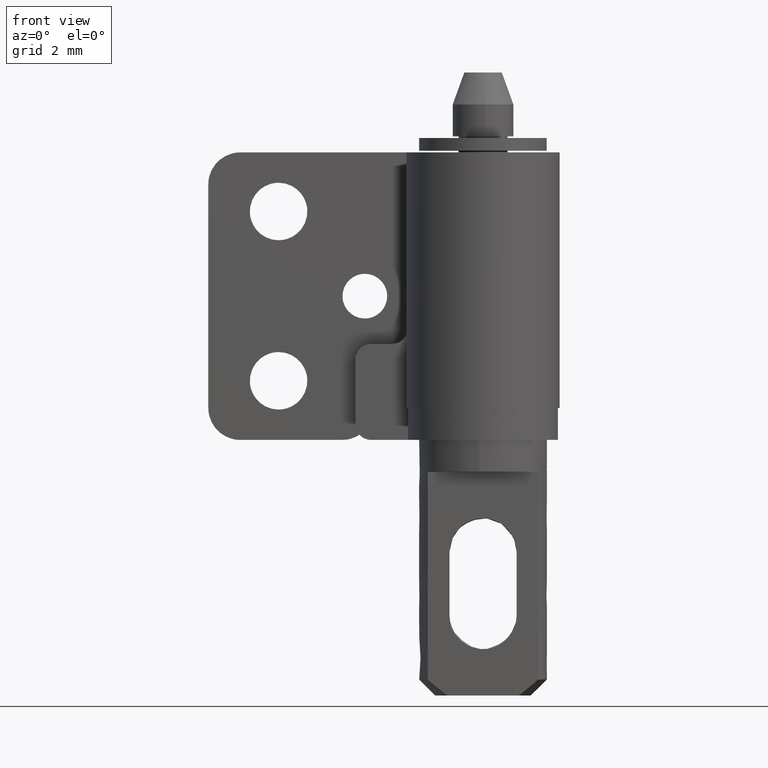
[diagram: clean part render]
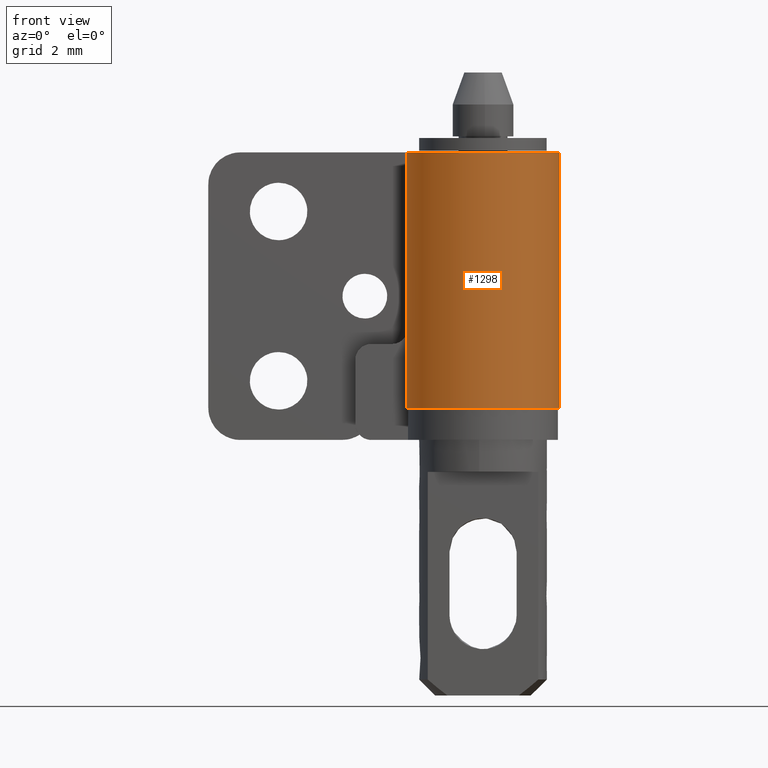
[diagram: same view with one face highlighted and labeled with its STEP entity id]
A machine part, front view. The second image highlights one B-rep face of the part: STEP entity #1298.
In plain terms, the highlighted face is a freeform B-spline surface patch.
Its self-contained STEP definition (entity closure, byte-faithful):
#558=CARTESIAN_POINT('',(-2.400000000000000,0.199999999999988,9.000000000000108));
#559=VERTEX_POINT('',#558);
#565=CARTESIAN_POINT('',(-2.400000000000035,0.199999999999988,17.0));
#566=VERTEX_POINT('',#565);
#567=CARTESIAN_POINT('',(-2.400000000000000,0.199999999999988,9.000000000000108));
#568=CARTESIAN_POINT('',(-2.400000000000035,0.199999999999988,17.0));
#569=QUASI_UNIFORM_CURVE('',1,(#567,#568),.UNSPECIFIED.,.F.,.U.);
#570=EDGE_CURVE('',#559,#566,#569,.T.);
#1128=CARTESIAN_POINT('',(0.0,2.600000000000045,9.0));
#1129=VERTEX_POINT('',#1128);
#1135=CARTESIAN_POINT('',(0.0,2.600000000000045,9.0));
#1136=CARTESIAN_POINT('',(0.117807704548001,2.600000938103884,9.000000000000005));
#1137=CARTESIAN_POINT('',(0.412336843036750,2.578297301376353,8.999999999999991));
#1138=CARTESIAN_POINT('',(0.834980960260857,2.466911120541015,9.000000000000030));
#1139=CARTESIAN_POINT('',(1.213301925994789,2.281507110138393,8.999999999999975));
#1140=CARTESIAN_POINT('',(1.516222946302001,2.070932811998147,8.999999999999970));
#1141=CARTESIAN_POINT('',(1.797217732167637,1.809125938897819,9.000000000000027));
#1142=CARTESIAN_POINT('',(2.033175386677562,1.496007272475662,8.999999999999989));
#1143=CARTESIAN_POINT('',(2.196802856793148,1.181781654782506,8.999999999999922));
#1144=CARTESIAN_POINT('',(2.299574923223785,0.905288362904476,9.000000000000224));
#1145=CARTESIAN_POINT('',(2.382279787765062,0.568612177828238,8.999999999999833));
#1146=CARTESIAN_POINT('',(2.411183427686613,0.207131128703586,9.000000000000007));
#1147=CARTESIAN_POINT('',(2.380769449414349,-0.145722067702748,9.000000000000242));
#1148=CARTESIAN_POINT('',(2.323576926300933,-0.420048751756929,8.999999999999908));
#1149=CARTESIAN_POINT('',(2.231909695528349,-0.700418541002367,8.999999999999959));
#1150=CARTESIAN_POINT('',(2.076246573472896,-1.026993938030161,9.000000000000542));
#1151=CARTESIAN_POINT('',(1.862798611649264,-1.329065348147361,8.999999999998572));
#1152=CARTESIAN_POINT('',(1.585055447991110,-1.614587060981526,9.000000000000716));
#1153=CARTESIAN_POINT('',(1.290136033948403,-1.837552696339725,8.999999999999757));
#1154=CARTESIAN_POINT('',(0.909591241818198,-2.034250261796553,9.000000000000034));
#1155=CARTESIAN_POINT('',(0.514103925144783,-2.157550267993957,9.000000000000055));
#1156=CARTESIAN_POINT('',(0.132796692263792,-2.204559895586096,8.999999999999881));
#1157=CARTESIAN_POINT('',(-0.184315590606998,-2.198227796206444,9.000000000000110));
#1158=CARTESIAN_POINT('',(-0.520449272405428,-2.152592282708989,9.000000000000195));
#1159=CARTESIAN_POINT('',(-0.924889162978570,-2.033309189380690,8.999999999999748));
#1160=CARTESIAN_POINT('',(-1.329295208019059,-1.815553629318419,9.000000000000116));
#1161=CARTESIAN_POINT('',(-1.627274563759044,-1.573249576500139,8.999999999999979));
#1162=CARTESIAN_POINT('',(-1.860752152671142,-1.327273461833276,9.000000000000004));
#1163=CARTESIAN_POINT('',(-2.033876322762714,-1.087755994985765,8.999999999999996));
#1164=CARTESIAN_POINT('',(-2.190715130986857,-0.795402067191368,9.0));
#1165=CARTESIAN_POINT('',(-2.291686969908287,-0.533642955002197,8.999999999999996));
#1166=CARTESIAN_POINT('',(-2.377146055115401,-0.190233975030050,9.000000000000036));
#1167=CARTESIAN_POINT('',(-2.400019444236524,0.045375886349818,8.999999999999933));
#1168=CARTESIAN_POINT('',(-2.400000000000000,0.199999999999988,9.000000000000108));
#1169=B_SPLINE_CURVE_WITH_KNOTS('',3,(#1135,#1136,#1137,#1138,#1139,#1140,#1141,#1142,#1143,#1144,#1145,#1146,#1147,#1148,#1149,#1150,#1151,#1152,#1153,#1154,#1155,#1156,#1157,#1158,#1159,#1160,#1161,#1162,#1163,#1164,#1165,#1166,#1167,#1168),.UNSPECIFIED.,.F.,.U.,(4,1,1,1,1,1,1,1,1,1,1,1,1,1,1,1,1,1,1,1,1,1,1,1,1,1,1,1,1,1,1,4),(0.000000027798633,0.353427150695305,0.883574573381939,1.303274426665954,1.612526542615305,1.988047584179197,2.451927184680304,2.783269720645752,3.048346604530911,3.335510734514617,3.821462803493664,4.130709566565032,4.395783029105128,4.660863817721719,5.014289419486254,5.478171272423724,5.765335255696649,6.207124499407086,6.582647657608725,7.046527721726020,7.444131104943908,7.731282195717392,7.996357283315280,8.460232945157303,8.990383070035559,9.365906425189836,9.608891297987407,10.006500242499300,10.249486957831181,10.602913951453090,10.845905412686450,11.309773471044119),.UNSPECIFIED.);
#1170=EDGE_CURVE('',#1129,#559,#1169,.T.);
#1187=CARTESIAN_POINT('',(4.408583E-016,2.600000000000000,17.0));
#1188=VERTEX_POINT('',#1187);
#1189=CARTESIAN_POINT('',(4.408583E-016,2.600000000000000,17.0));
#1190=CARTESIAN_POINT('',(0.191445759073999,2.600052283096230,16.999999999999950));
#1191=CARTESIAN_POINT('',(0.478579783128173,2.565446015609182,17.000000000000028));
#1192=CARTESIAN_POINT('',(0.852160998208939,2.450233667472978,17.0));
#1193=CARTESIAN_POINT('',(1.141420615708140,2.319887186043875,17.0));
#1194=CARTESIAN_POINT('',(1.460170425645326,2.119429829610161,16.999999999999979));
#1195=CARTESIAN_POINT('',(1.746377884081645,1.862410973482028,17.000000000000089));
#1196=CARTESIAN_POINT('',(1.962709634886039,1.591234362329801,16.999999999999929));
#1197=CARTESIAN_POINT('',(2.125555242854200,1.327863421156209,16.999999999999979));
#1198=CARTESIAN_POINT('',(2.239309491220284,1.079502850431175,17.000000000000259));
#1199=CARTESIAN_POINT('',(2.349460204788313,0.735530118225977,16.999999999999879));
#1200=CARTESIAN_POINT('',(2.405380799567322,0.384556472644012,16.999999999999758));
#1201=CARTESIAN_POINT('',(2.397775287055093,-0.065608851384428,17.000000000000629));
#1202=CARTESIAN_POINT('',(2.327228233108229,-0.429030367125183,16.999999999999702));
#1203=CARTESIAN_POINT('',(2.181981143313253,-0.823488119256783,17.000000000000160));
#1204=CARTESIAN_POINT('',(2.015998169312472,-1.120720715517506,16.999999999999890));
#1205=CARTESIAN_POINT('',(1.765481194895498,-1.439705718035531,17.000000000000210));
#1206=CARTESIAN_POINT('',(1.517238521743087,-1.672449042609125,17.000000000000199));
#1207=CARTESIAN_POINT('',(1.206047760299854,-1.883837203127934,17.000000000000089));
#1208=CARTESIAN_POINT('',(0.908043552589010,-2.030985757949626,16.999999999999929));
#1209=CARTESIAN_POINT('',(0.528656096422706,-2.153110922996860,17.000000000000028));
#1210=CARTESIAN_POINT('',(0.162300168226027,-2.205165463369965,16.999999999999961));
#1211=CARTESIAN_POINT('',(-0.206440028501647,-2.197787102088229,17.000000000000028));
#1212=CARTESIAN_POINT('',(-0.556798418931694,-2.145284780919841,17.000000000000838));
#1213=CARTESIAN_POINT('',(-0.908908700549255,-2.032548382550074,16.999999999999730));
#1214=CARTESIAN_POINT('',(-1.218036054619669,-1.875143335730172,17.000000000000039));
#1215=CARTESIAN_POINT('',(-1.486717096018603,-1.693227508666245,17.000000000000011));
#1216=CARTESIAN_POINT('',(-1.751218338033658,-1.457179467090223,16.999999999999979));
#1217=CARTESIAN_POINT('',(-2.010356721034000,-1.134420611897507,17.000000000000021));
#1218=CARTESIAN_POINT('',(-2.211315994394226,-0.763934210505071,17.0));
#1219=CARTESIAN_POINT('',(-2.361014797856595,-0.315396216716793,17.0));
#1220=CARTESIAN_POINT('',(-2.400048883569449,0.008554808075371,17.000000000000011));
#1221=CARTESIAN_POINT('',(-2.400000000000035,0.199999999999988,17.0));
#1222=B_SPLINE_CURVE_WITH_KNOTS('',3,(#1189,#1190,#1191,#1192,#1193,#1194,#1195,#1196,#1197,#1198,#1199,#1200,#1201,#1202,#1203,#1204,#1205,#1206,#1207,#1208,#1209,#1210,#1211,#1212,#1213,#1214,#1215,#1216,#1217,#1218,#1219,#1220,#1221),.UNSPECIFIED.,.F.,.U.,(4,1,1,1,1,1,1,1,1,1,1,1,1,1,1,1,1,1,1,1,1,1,1,1,1,1,1,1,1,1,4),(0.000000027799711,0.574321471016827,0.861480123754875,1.170733363863338,1.524167881503892,1.988047584179682,2.319389084867444,2.562375113133919,2.915808732039146,3.136696602440619,3.644757394491898,3.976083586754837,4.484139164420831,4.749216767947921,5.235184863167927,5.500261110947895,5.964141653734071,6.251305496939245,6.626828799515312,6.958166993814983,7.444131104943606,7.731282195717107,8.062622918861951,8.504414790326127,8.835757948166268,9.100830741055269,9.476353560239071,9.896052836424618,10.337841960714069,10.735450827171521,11.309773471044100),.UNSPECIFIED.);
#1223=EDGE_CURVE('',#1188,#566,#1222,.T.);
#1266=CARTESIAN_POINT('',(-0.020943685196095,2.599908615353999,8.799999999999997));
#1267=CARTESIAN_POINT('',(-0.020943685196095,2.599908615353999,17.205000000000009));
#1268=CARTESIAN_POINT('',(2.435473395621861,2.621345442457256,8.799999999999997));
#1269=CARTESIAN_POINT('',(2.435473395621861,2.621345442457256,17.205000000000002));
#1270=CARTESIAN_POINT('',(2.399746156625057,0.165094645636189,8.799999999999997));
#1271=CARTESIAN_POINT('',(2.399746156625057,0.165094645636189,17.205000000000009));
#1272=CARTESIAN_POINT('',(2.364018917628253,-2.291156151184880,8.799999999999997));
#1273=CARTESIAN_POINT('',(2.364018917628253,-2.291156151184880,17.205000000000002));
#1274=CARTESIAN_POINT('',(-0.090735492058539,-2.198284193018198,8.799999999999997));
#1275=CARTESIAN_POINT('',(-0.090735492058539,-2.198284193018198,17.205000000000009));
#1276=CARTESIAN_POINT('',(-2.545489901745332,-2.105412234851515,8.799999999999997));
#1277=CARTESIAN_POINT('',(-2.545489901745332,-2.105412234851515,17.205000000000002));
#1278=CARTESIAN_POINT('',(-2.395523516212480,0.346516494883646,8.799999999999997));
#1279=CARTESIAN_POINT('',(-2.395523516212480,0.346516494883646,17.205000000000009));
#1287=(BOUNDED_SURFACE()B_SPLINE_SURFACE(1,2,((#1266,#1268,#1270,#1272,#1274,#1276,#1278),(#1267,#1269,#1271,#1273,#1275,#1277,#1279)),.UNSPECIFIED.,.F.,.F.,.U.)B_SPLINE_SURFACE_WITH_KNOTS((2,2),(3,2,2,3),(0.0,8.405000000000008),(0.0,4.042041974772276,8.084083949544551,12.126125924316829),.UNSPECIFIED.)GEOMETRIC_REPRESENTATION_ITEM()RATIONAL_B_SPLINE_SURFACE(((1.0,0.698831540367900,1.0,0.698831540367900,1.0,0.698831540367900,1.0),(1.0,0.698831540367900,1.0,0.698831540367900,1.0,0.698831540367900,1.0)))REPRESENTATION_ITEM('')SURFACE());
#1288=CARTESIAN_POINT('',(0.0,2.600000000000045,9.0));
#1289=CARTESIAN_POINT('',(4.408583E-016,2.600000000000000,17.0));
#1290=QUASI_UNIFORM_CURVE('',1,(#1288,#1289),.UNSPECIFIED.,.F.,.U.);
#1291=EDGE_CURVE('',#1129,#1188,#1290,.T.);
#1292=ORIENTED_EDGE('',*,*,#1291,.T.);
#1293=ORIENTED_EDGE('',*,*,#1223,.T.);
#1294=ORIENTED_EDGE('',*,*,#570,.F.);
#1295=ORIENTED_EDGE('',*,*,#1170,.F.);
#1296=EDGE_LOOP('',(#1292,#1293,#1294,#1295));
#1297=FACE_OUTER_BOUND('',#1296,.T.);
#1298=ADVANCED_FACE('',(#1297),#1287,.T.);